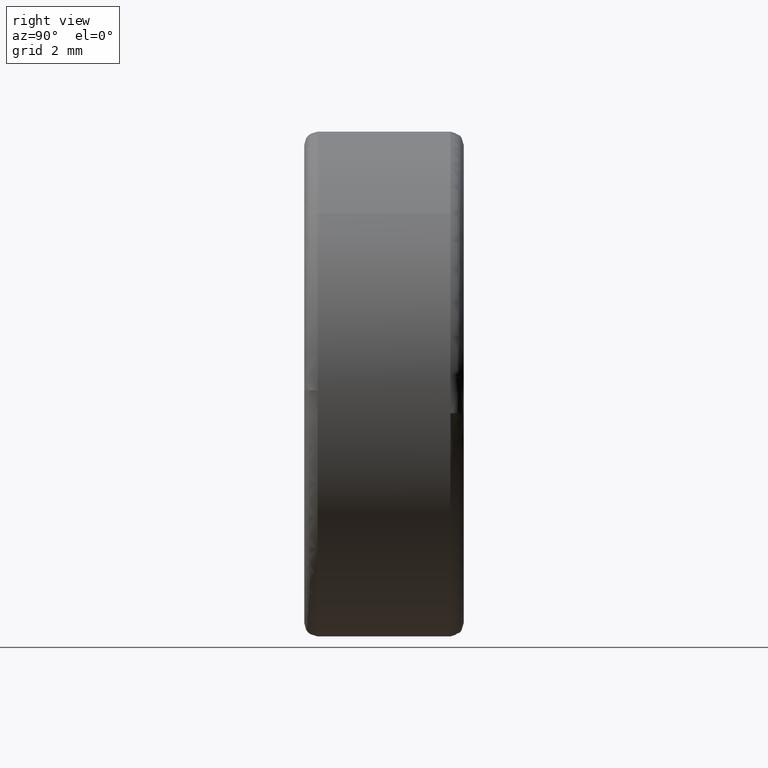
[diagram: clean part render]
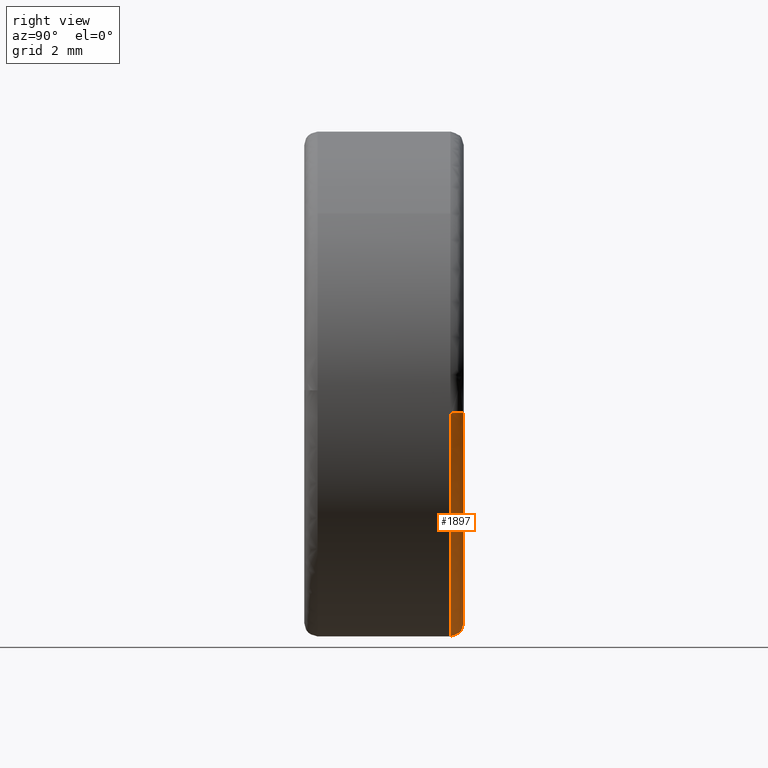
[diagram: same view with one face highlighted and labeled with its STEP entity id]
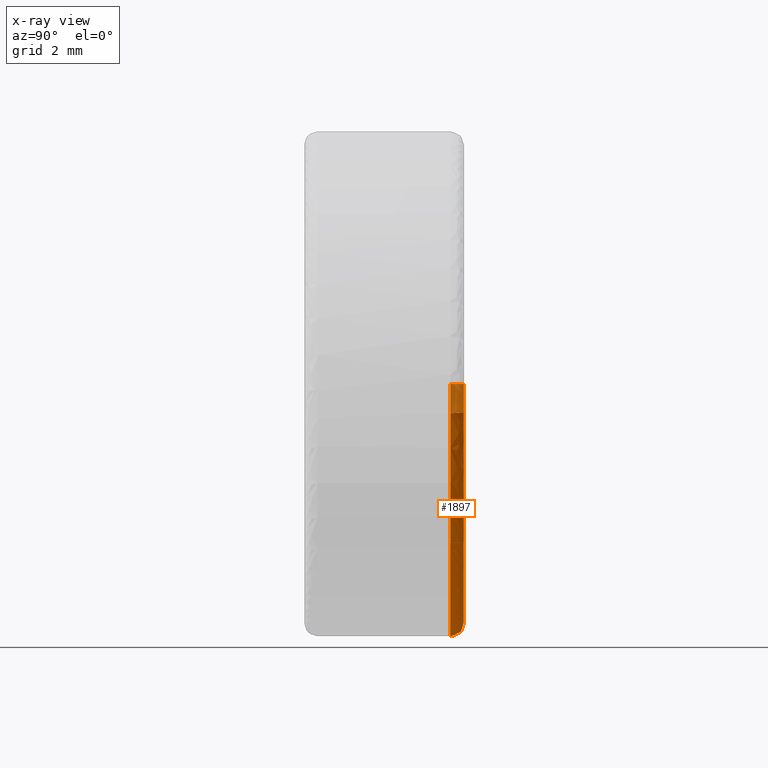
[diagram: x-ray of the same camera — body ghosted, the highlighted face saturated]
A machine part, right view. The second image highlights one B-rep face of the part: STEP entity #1897.
The next image is the same camera in x-ray: the body ghosted, the highlighted face saturated — about 12% of this face is hidden behind the body in this view.
In plain terms, the highlighted face is a freeform B-spline surface patch.
Its self-contained STEP definition (entity closure, byte-faithful):
#1214=CARTESIAN_POINT('',(-9.499999999999996,5.500000000078531,3.107089E-015));
#1215=VERTEX_POINT('',#1214);
#1229=CARTESIAN_POINT('',(0.0,5.500000000000000,-9.500000000000000));
#1230=VERTEX_POINT('',#1229);
#1231=CARTESIAN_POINT('',(-9.500000000000000,5.500000000078534,3.107089E-015));
#1232=CARTESIAN_POINT('',(-9.500000000000005,5.500000000000000,-9.499999999999998));
#1233=CARTESIAN_POINT('',(0.0,5.500000000000000,-9.500000000000000));
#1241=(BOUNDED_CURVE()B_SPLINE_CURVE(2,(#1231,#1232,#1233),.UNSPECIFIED.,.F.,.U.)B_SPLINE_CURVE_WITH_KNOTS((3,3),(0.750000000000000,1.0),.UNSPECIFIED.)CURVE()GEOMETRIC_REPRESENTATION_ITEM()RATIONAL_B_SPLINE_CURVE((1.0,0.707106781186547,1.0))REPRESENTATION_ITEM(''));
#1242=EDGE_CURVE('',#1215,#1230,#1241,.T.);
#1244=CARTESIAN_POINT('',(9.436460568457928,5.500000000077355,-1.096910178610184));
#1245=VERTEX_POINT('',#1244);
#1246=CARTESIAN_POINT('',(0.0,5.500000000000000,-9.500000000000000));
#1247=CARTESIAN_POINT('',(8.459671157850583,5.500000000000000,-9.499999999999998));
#1248=CARTESIAN_POINT('',(9.436460568457928,5.500000000077355,-1.096910178610185));
#1256=(BOUNDED_CURVE()B_SPLINE_CURVE(2,(#1246,#1247,#1248),.UNSPECIFIED.,.F.,.U.)B_SPLINE_CURVE_WITH_KNOTS((3,3),(0.0,0.229999999999893),.UNSPECIFIED.)CURVE()GEOMETRIC_REPRESENTATION_ITEM()RATIONAL_B_SPLINE_CURVE((1.0,0.730538238691749,0.956886118190449))REPRESENTATION_ITEM(''));
#1257=EDGE_CURVE('',#1230,#1245,#1256,.T.);
#1775=CARTESIAN_POINT('',(8.939804749547164,5.999999999999999,-1.039178064013100));
#1776=VERTEX_POINT('',#1775);
#1777=CARTESIAN_POINT('',(8.939804749547164,5.999999999999999,-1.039178064013100));
#1778=CARTESIAN_POINT('',(9.436460568304598,5.999999999027542,-1.096910178589340));
#1779=CARTESIAN_POINT('',(9.436460568457928,5.500000000077355,-1.096910178610184));
#1787=(BOUNDED_CURVE()B_SPLINE_CURVE(2,(#1777,#1778,#1779),.UNSPECIFIED.,.F.,.U.)B_SPLINE_CURVE_WITH_KNOTS((3,3),(-1.736413119059253,-0.276558718333807),.UNSPECIFIED.)CURVE()GEOMETRIC_REPRESENTATION_ITEM()RATIONAL_B_SPLINE_CURVE((0.850203275608831,0.599621899608375,0.845789311790045))REPRESENTATION_ITEM(''));
#1788=EDGE_CURVE('',#1776,#1245,#1787,.T.);
#1807=CARTESIAN_POINT('',(-9.000000000022807,6.0,4.426226E-016));
#1808=VERTEX_POINT('',#1807);
#1822=CARTESIAN_POINT('',(-9.000000000022807,6.0,4.426226E-016));
#1823=CARTESIAN_POINT('',(-9.499999999842931,5.999999999954381,8.742504E-016));
#1824=CARTESIAN_POINT('',(-9.499999999999996,5.500000000078531,3.107089E-015));
#1832=(BOUNDED_CURVE()B_SPLINE_CURVE(2,(#1822,#1823,#1824),.UNSPECIFIED.,.F.,.U.)B_SPLINE_CURVE_WITH_KNOTS((3,3),(-1.736413120977746,-0.276558718338653),.UNSPECIFIED.)CURVE()GEOMETRIC_REPRESENTATION_ITEM()RATIONAL_B_SPLINE_CURVE((0.888510409028674,0.626638727312195,0.883897567024676))REPRESENTATION_ITEM(''));
#1833=EDGE_CURVE('',#1808,#1215,#1832,.T.);
#1840=CARTESIAN_POINT('',(-8.965324712267668,5.998796175226595,5.489497E-016));
#1841=CARTESIAN_POINT('',(-8.965324712267668,5.998796175226596,-8.965324712267668));
#1842=CARTESIAN_POINT('',(-1.097899E-015,5.998796175226595,-8.965324712267668));
#1843=CARTESIAN_POINT('',(7.983547251493062,5.998796175226595,-8.965324712267668));
#1844=CARTESIAN_POINT('',(8.905361382182990,5.998796175226596,-1.035174308568958));
#1845=CARTESIAN_POINT('',(-9.538869635959982,6.038667842741715,5.840680E-016));
#1846=CARTESIAN_POINT('',(-9.538869635959982,6.038667842741711,-9.538869635959982));
#1847=CARTESIAN_POINT('',(-1.168136E-015,6.038667842741715,-9.538869635959982));
#1848=CARTESIAN_POINT('',(8.494284246092491,6.038667842741716,-9.538869635959987));
#1849=CARTESIAN_POINT('',(9.475070230252667,6.038667842741714,-1.101398231167547));
#1850=CARTESIAN_POINT('',(-9.498783152779625,5.465137893018171,5.816135E-016));
#1851=CARTESIAN_POINT('',(-9.498783152779625,5.465137893018171,-9.498783152779625));
#1852=CARTESIAN_POINT('',(-1.163227E-015,5.465137893018171,-9.498783152779625));
#1853=CARTESIAN_POINT('',(8.458587565505043,5.465137893018170,-9.498783152779625));
#1854=CARTESIAN_POINT('',(9.435251859951656,5.465137893018174,-1.096769676280695));
#1862=(BOUNDED_SURFACE()B_SPLINE_SURFACE(2,2,((#1840,#1845,#1850),(#1841,#1846,#1851),(#1842,#1847,#1852),(#1843,#1848,#1853),(#1844,#1849,#1854)),.UNSPECIFIED.,.F.,.F.,.U.)B_SPLINE_SURFACE_WITH_KNOTS((3,2,3),(3,3),(0.0,15.738099231689549,30.217150524843930),(0.0,0.911185181254625),.UNSPECIFIED.)GEOMETRIC_REPRESENTATION_ITEM()RATIONAL_B_SPLINE_SURFACE(((0.915966621911565,0.599412927647948,0.910892953526734),(0.647686209694202,0.423848945870745,0.644098584373797),(0.915966621911565,0.599412927647948,0.910892953526734),(0.669148642671591,0.437894064412921,0.665442133906032),(0.876475745233169,0.573569909530343,0.871620822387422)))REPRESENTATION_ITEM('')SURFACE());
#1863=ORIENTED_EDGE('',*,*,#1257,.F.);
#1864=ORIENTED_EDGE('',*,*,#1242,.F.);
#1865=ORIENTED_EDGE('',*,*,#1833,.F.);
#1866=CARTESIAN_POINT('',(0.0,6.0,-9.0));
#1867=VERTEX_POINT('',#1866);
#1868=CARTESIAN_POINT('',(-9.000000000022807,6.0,4.426226E-016));
#1869=CARTESIAN_POINT('',(-9.0,6.0,-9.0));
#1870=CARTESIAN_POINT('',(0.0,6.0,-9.0));
#1878=(BOUNDED_CURVE()B_SPLINE_CURVE(2,(#1868,#1869,#1870),.UNSPECIFIED.,.F.,.U.)B_SPLINE_CURVE_WITH_KNOTS((3,3),(0.750000000000000,1.0),.UNSPECIFIED.)CURVE()GEOMETRIC_REPRESENTATION_ITEM()RATIONAL_B_SPLINE_CURVE((1.0,0.707106781186547,1.0))REPRESENTATION_ITEM(''));
#1879=EDGE_CURVE('',#1808,#1867,#1878,.T.);
#1880=ORIENTED_EDGE('',*,*,#1879,.T.);
#1881=CARTESIAN_POINT('',(0.0,6.0,-9.0));
#1882=CARTESIAN_POINT('',(8.014425307418494,6.000000000000001,-9.0));
#1883=CARTESIAN_POINT('',(8.939804749547164,5.999999999999999,-1.039178064013100));
#1891=(BOUNDED_CURVE()B_SPLINE_CURVE(2,(#1881,#1882,#1883),.UNSPECIFIED.,.F.,.U.)B_SPLINE_CURVE_WITH_KNOTS((3,3),(0.0,0.229999999999497),.UNSPECIFIED.)CURVE()GEOMETRIC_REPRESENTATION_ITEM()RATIONAL_B_SPLINE_CURVE((1.0,0.730538238692213,0.956886118189670))REPRESENTATION_ITEM(''));
#1892=EDGE_CURVE('',#1867,#1776,#1891,.T.);
#1893=ORIENTED_EDGE('',*,*,#1892,.T.);
#1894=ORIENTED_EDGE('',*,*,#1788,.T.);
#1895=EDGE_LOOP('',(#1863,#1864,#1865,#1880,#1893,#1894));
#1896=FACE_OUTER_BOUND('',#1895,.T.);
#1897=ADVANCED_FACE('',(#1896),#1862,.T.);